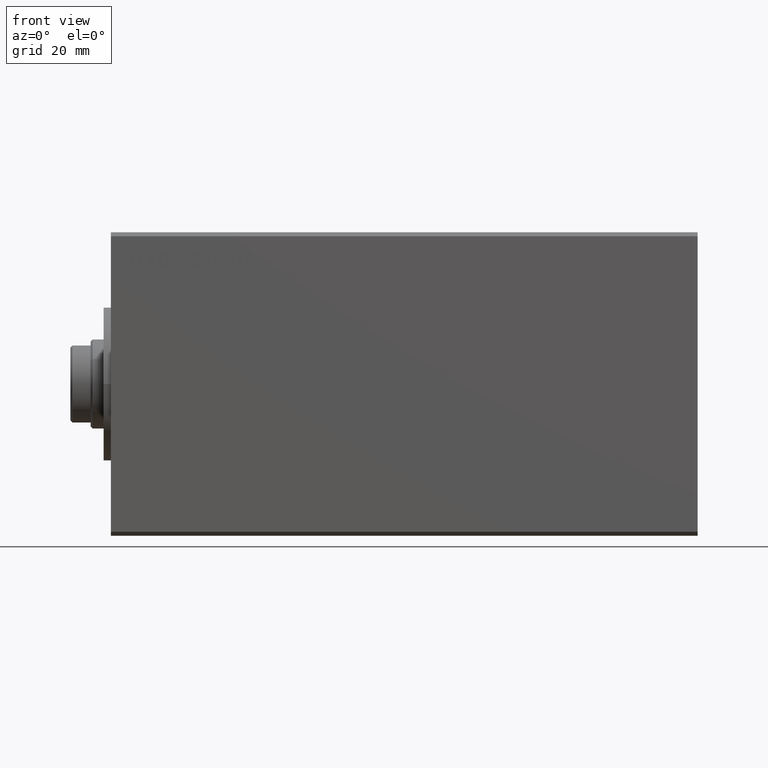
[diagram: clean part render]
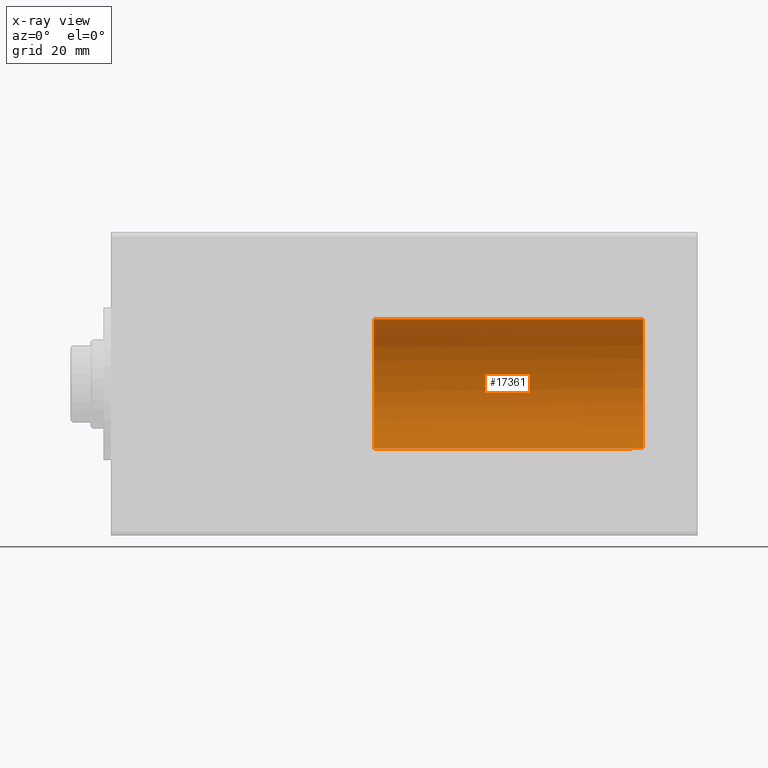
[diagram: x-ray — body ghosted, one internal face saturated and labeled with its STEP entity id]
A machine part, front view, then the same camera in x-ray: the body is ghosted and one INTERNAL B-rep face — a face not visible from any outside direction — is saturated and labeled: STEP entity #17361.
In plain terms, the highlighted cylindrical surface (partial cylindrical patch) has radius 16 mm, axis along (-1, -0, -0).
Its self-contained STEP definition (entity closure, byte-faithful):
#940 = AXIS2_PLACEMENT_3D ( 'NONE', #41998, #7881, #4542 ) ;
#2931 = AXIS2_PLACEMENT_3D ( 'NONE', #14266, #31211, #27873 ) ;
#3499 = CARTESIAN_POINT ( 'NONE',  ( 65.00000000000000000, 0.000000000000000000, 16.00000000000000000 ) ) ;
#3507 = CARTESIAN_POINT ( 'NONE',  ( 131.5000000000000000, 1.786057109949259036, -15.89999999999998970 ) ) ;
#4542 = DIRECTION ( 'NONE',  ( 0.000000000000000000, 0.000000000000000000, 1.000000000000000000 ) ) ;
#5087 = CARTESIAN_POINT ( 'NONE',  ( 65.00000000000000000, 0.000000000000000000, 0.000000000000000000 ) ) ;
#5306 = DIRECTION ( 'NONE',  ( 0.000000000000000000, 0.000000000000000000, 1.000000000000000000 ) ) ;
#5483 = ORIENTED_EDGE ( 'NONE', *, *, #37243, .F. ) ;
#5927 = CIRCLE ( 'NONE', #940, 16.00000000000000000 ) ;
#7036 = CARTESIAN_POINT ( 'NONE',  ( 128.3640082416885946, 0.8002234119869110485, -15.98070334047259777 ) ) ;
#7881 = DIRECTION ( 'NONE',  ( -1.000000000000000000, 0.000000000000000000, 0.000000000000000000 ) ) ;
#8749 = CARTESIAN_POINT ( 'NONE',  ( 65.00000000000000000, 1.959434878635765131E-15, -16.00000000000000000 ) ) ;
#8789 = CARTESIAN_POINT ( 'NONE',  ( 128.5452919902453459, 1.250171241089536256, -15.95169574138015989 ) ) ;
#9489 = ORIENTED_EDGE ( 'NONE', *, *, #36032, .T. ) ;
#10249 = CYLINDRICAL_SURFACE ( 'NONE', #2931, 16.00000000000000000 ) ;
#11223 = VERTEX_POINT ( 'NONE', #35541 ) ;
#12083 = EDGE_LOOP ( 'NONE', ( #24786, #34043, #5483, #14920, #29220, #9489 ) ) ;
#13414 = VERTEX_POINT ( 'NONE', #33320 ) ;
#14266 = CARTESIAN_POINT ( 'NONE',  ( 131.5000000000000000, 0.000000000000000000, 0.000000000000000000 ) ) ;
#14920 = ORIENTED_EDGE ( 'NONE', *, *, #23604, .F. ) ;
#15336 = DIRECTION ( 'NONE',  ( -1.000000000000000000, 0.000000000000000000, 0.000000000000000000 ) ) ;
#17361 = ADVANCED_FACE ( 'NONE', ( #24306 ), #10249, .F. ) ;
#20338 = EDGE_CURVE ( 'NONE', #11223, #32022, #36528, .T. ) ;
#20657 = EDGE_CURVE ( 'NONE', #11223, #40387, #36906, .T. ) ;
#20897 = DIRECTION ( 'NONE',  ( -1.000000000000000000, -0.000000000000000000, -0.000000000000000000 ) ) ;
#21226 = CARTESIAN_POINT ( 'NONE',  ( 128.9089476333673758, 1.786057109949259036, -15.89999999999998970 ) ) ;
#21304 = CARTESIAN_POINT ( 'NONE',  ( 128.2499999999999716, 0.1628529246558446664, -16.00000000000000000 ) ) ;
#21738 = VERTEX_POINT ( 'NONE', #3499 ) ;
#23604 = EDGE_CURVE ( 'NONE', #13414, #40844, #5927, .T. ) ;
#24240 = LINE ( 'NONE', #37828, #30264 ) ;
#24306 = FACE_OUTER_BOUND ( 'NONE', #12083, .T. ) ;
#24786 = ORIENTED_EDGE ( 'NONE', *, *, #20338, .F. ) ;
#25080 = CARTESIAN_POINT ( 'NONE',  ( 128.4763581403532555, 1.104555034037126848, -15.96255602784426841 ) ) ;
#27330 = CARTESIAN_POINT ( 'NONE',  ( 128.3210355422414750, 0.6416550435731687152, -15.98791951246752596 ) ) ;
#27689 = CIRCLE ( 'NONE', #38368, 16.00000000000000000 ) ;
#27873 = DIRECTION ( 'NONE',  ( 0.000000000000000000, 0.000000000000000000, 1.000000000000000000 ) ) ;
#28865 = CARTESIAN_POINT ( 'NONE',  ( 128.8030230027346192, 1.662044306363393842, -15.91393043707982002 ) ) ;
#29220 = ORIENTED_EDGE ( 'NONE', *, *, #29388, .T. ) ;
#29388 = EDGE_CURVE ( 'NONE', #13414, #21738, #34565, .T. ) ;
#30264 = VECTOR ( 'NONE', #20897, 1000.000000000000000 ) ;
#30679 = CARTESIAN_POINT ( 'NONE',  ( 128.2499999999999432, 1.952197214168045357E-15, -16.00000000000000000 ) ) ;
#31211 = DIRECTION ( 'NONE',  ( -1.000000000000000000, -0.000000000000000000, -0.000000000000000000 ) ) ;
#32022 = VERTEX_POINT ( 'NONE', #8749 ) ;
#32219 = CARTESIAN_POINT ( 'NONE',  ( 128.7082842211411560, 1.528580496451071635, -15.92742812959714982 ) ) ;
#33320 = CARTESIAN_POINT ( 'NONE',  ( 131.5000000000000000, 0.000000000000000000, 16.00000000000000000 ) ) ;
#34043 = ORIENTED_EDGE ( 'NONE', *, *, #20657, .T. ) ;
#34148 = VECTOR ( 'NONE', #37910, 1000.000000000000000 ) ;
#34342 = VECTOR ( 'NONE', #44111, 1000.000000000000000 ) ;
#34565 = LINE ( 'NONE', #41251, #34148 ) ;
#34902 = CARTESIAN_POINT ( 'NONE',  ( 128.2643523021424699, 0.3237335850403373350, -15.99751506009603652 ) ) ;
#35329 = CARTESIAN_POINT ( 'NONE',  ( 128.9089476333673758, 1.786057109949259036, -15.89999999999998970 ) ) ;
#35541 = CARTESIAN_POINT ( 'NONE',  ( 128.2499999999999432, 1.952197214168045357E-15, -16.00000000000000000 ) ) ;
#36032 = EDGE_CURVE ( 'NONE', #21738, #32022, #27689, .T. ) ;
#36528 = LINE ( 'NONE', #40532, #34342 ) ;
#36906 = B_SPLINE_CURVE_WITH_KNOTS ( 'NONE', 3,
 ( #30679, #21304, #34902, #27330, #7036, #25080, #8789, #32219, #28865, #35329 ),
 .UNSPECIFIED., .F., .F.,
 ( 4, 2, 2, 2, 4 ),
 ( 0.001937515079377272013, 0.002421672136522719492, 0.002905829193668166537, 0.003389986250813613582, 0.003874143307959060627 ),
 .UNSPECIFIED. ) ;
#37243 = EDGE_CURVE ( 'NONE', #40844, #40387, #24240, .T. ) ;
#37828 = CARTESIAN_POINT ( 'NONE',  ( 131.5000000000000000, 1.786057109949259036, -15.89999999999998970 ) ) ;
#37910 = DIRECTION ( 'NONE',  ( -1.000000000000000000, -0.000000000000000000, -0.000000000000000000 ) ) ;
#38368 = AXIS2_PLACEMENT_3D ( 'NONE', #5087, #15336, #5306 ) ;
#40387 = VERTEX_POINT ( 'NONE', #21226 ) ;
#40532 = CARTESIAN_POINT ( 'NONE',  ( 131.5000000000000000, 1.959434878635765131E-15, -16.00000000000000000 ) ) ;
#40844 = VERTEX_POINT ( 'NONE', #3507 ) ;
#41251 = CARTESIAN_POINT ( 'NONE',  ( 131.5000000000000000, 0.000000000000000000, 16.00000000000000000 ) ) ;
#41998 = CARTESIAN_POINT ( 'NONE',  ( 131.5000000000000000, 0.000000000000000000, 0.000000000000000000 ) ) ;
#44111 = DIRECTION ( 'NONE',  ( -1.000000000000000000, -0.000000000000000000, -0.000000000000000000 ) ) ;